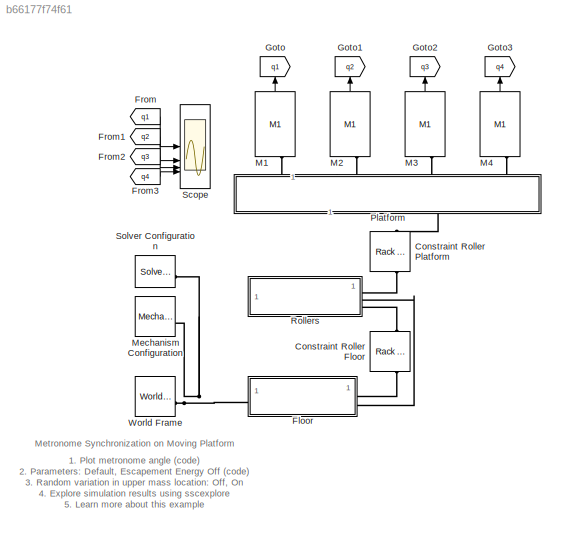
MODEL slx_b66177f74f61
KIND model
CONFIG AbsTol = 1e-3
CONFIG EnableMultiTasking = on
CONFIG MaxStep = 1e-2
CONFIG PreLoadFcn = sm_metronome_sync_param
CONFIG SolverName = ode23t
CONFIG StopTime = 300
BLOCK [Reference] Constraint Roller Floor  REF=sm_lib/Gears and
Couplings/Gears/Rack and Pinion
Constraint
  NameLocation = left
  SourceBlock = sm_lib/Gears and\nCouplings/Gears/Rack and Pinion\nConstraint
  SourceType = Rack and Pinion\nConstraint
BLOCK [Reference] Constraint Roller Platform  REF=sm_lib/Gears and
Couplings/Gears/Rack and Pinion
Constraint
  NameLocation = left
  SourceBlock = sm_lib/Gears and\nCouplings/Gears/Rack and Pinion\nConstraint
  SourceType = Rack and Pinion\nConstraint
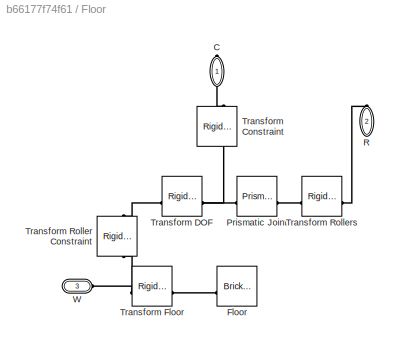
BLOCK [SubSystem] Floor
BLOCK [PMIOPort] Floor/C
  NameLocation = right
  Side = Right
BLOCK [Reference] Floor/Floor  REF=sm_lib/Body Elements/Brick Solid
  SourceBlock = sm_lib/Body Elements/Brick Solid
  SourceType = Brick Solid
BLOCK [Reference] Floor/Prismatic Joint  REF=sm_lib/Joints/Prismatic
Joint
  SourceBlock = sm_lib/Joints/Prismatic\nJoint
  SourceType = Prismatic\nJoint
BLOCK [PMIOPort] Floor/R
  NameLocation = right
  Port = 2
  Side = Right
BLOCK [Reference] Floor/Transform Constraint  REF=sm_lib/Frames and
Transforms/Rigid
Transform
  NameLocation = right
  SourceBlock = sm_lib/Frames and\nTransforms/Rigid\nTransform
  SourceType = Rigid\nTransform
BLOCK [Reference] Floor/Transform DOF  REF=sm_lib/Frames and
Transforms/Rigid
Transform
  SourceBlock = sm_lib/Frames and\nTransforms/Rigid\nTransform
  SourceType = Rigid\nTransform
BLOCK [Reference] Floor/Transform Floor  REF=sm_lib/Frames and
Transforms/Rigid
Transform
  SourceBlock = sm_lib/Frames and\nTransforms/Rigid\nTransform
  SourceType = Rigid\nTransform
BLOCK [Reference] Floor/Transform Roller Constraint  REF=sm_lib/Frames and
Transforms/Rigid
Transform
  NameLocation = left
  SourceBlock = sm_lib/Frames and\nTransforms/Rigid\nTransform
  SourceType = Rigid\nTransform
BLOCK [Reference] Floor/Transform Rollers  REF=sm_lib/Frames and
Transforms/Rigid
Transform
  SourceBlock = sm_lib/Frames and\nTransforms/Rigid\nTransform
  SourceType = Rigid\nTransform
BLOCK [PMIOPort] Floor/W
  Port = 3
  Side = Left
BLOCK [From] From
  GotoTag = q1
BLOCK [From] From1
  GotoTag = q2
BLOCK [From] From2
  GotoTag = q3
BLOCK [From] From3
  GotoTag = q4
BLOCK [Goto] Goto
  GotoTag = q1
  NameLocation = right
BLOCK [Goto] Goto1
  GotoTag = q2
  NameLocation = right
BLOCK [Goto] Goto2
  GotoTag = q3
  NameLocation = right
BLOCK [Goto] Goto3
  GotoTag = q4
  NameLocation = right
BLOCK [Reference] M1  REF=sm_metronome_lib/M1  (lib defined in slx_9433ba20aabc)
  NameLocation = right
  SourceBlock = sm_metronome_lib/M1
  SourceType = Metronome
BLOCK [Reference] M2  REF=sm_metronome_lib/M1  (lib defined in slx_9433ba20aabc)
  NameLocation = right
  SourceBlock = sm_metronome_lib/M1
  SourceType = Metronome
BLOCK [Reference] M3  REF=sm_metronome_lib/M1  (lib defined in slx_9433ba20aabc)
  NameLocation = right
  SourceBlock = sm_metronome_lib/M1
  SourceType = Metronome
BLOCK [Reference] M4  REF=sm_metronome_lib/M1  (lib defined in slx_9433ba20aabc)
  NameLocation = right
  SourceBlock = sm_metronome_lib/M1
  SourceType = Metronome
BLOCK [Reference] Mechanism Configuration  REF=sm_lib/Utilities/Mechanism
Configuration
  SourceBlock = sm_lib/Utilities/Mechanism\nConfiguration
  SourceType = Mechanism\nConfiguration
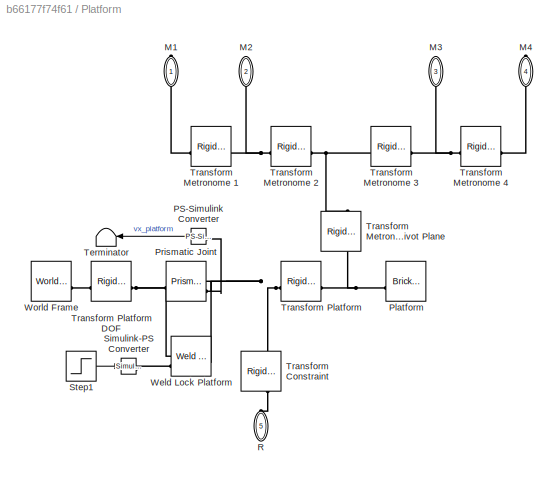
BLOCK [SubSystem] Platform
  NameLocation = right
BLOCK [PMIOPort] Platform/M1
  NameLocation = right
  Side = Right
BLOCK [PMIOPort] Platform/M2
  NameLocation = right
  Port = 2
  Side = Right
BLOCK [PMIOPort] Platform/M3
  NameLocation = left
  Port = 3
  Side = Right
BLOCK [PMIOPort] Platform/M4
  NameLocation = left
  Port = 4
  Side = Right
BLOCK [Reference] Platform/PS-Simulink Converter  REF=nesl_utility/PS-Simulink
Converter
  NameLocation = top
  SourceBlock = nesl_utility/PS-Simulink\nConverter
  SourceType = PS-Simulink\nConverter
BLOCK [Reference] Platform/Platform  REF=sm_lib/Body Elements/Brick Solid
  NameLocation = right
  SourceBlock = sm_lib/Body Elements/Brick Solid
  SourceType = Brick Solid
BLOCK [Reference] Platform/Prismatic Joint  REF=sm_lib/Joints/Prismatic
Joint
  SourceBlock = sm_lib/Joints/Prismatic\nJoint
  SourceType = Prismatic\nJoint
BLOCK [PMIOPort] Platform/R
  NameLocation = left
  Port = 5
  Side = Left
BLOCK [Reference] Platform/Simulink-PS Converter  REF=nesl_utility/Simulink-PS
Converter
  NameLocation = top
  SourceBlock = nesl_utility/Simulink-PS\nConverter
  SourceType = Simulink-PS\nConverter
BLOCK [Step] Platform/Step1
  FinalValue = -1
  NameLocation = top
  SampleTime = 0
  Time = t_unlock
BLOCK [Terminator] Platform/Terminator
  NameLocation = top
BLOCK [Reference] Platform/Transform Constraint  REF=sm_lib/Frames and
Transforms/Rigid
Transform
  NameLocation = right
  SourceBlock = sm_lib/Frames and\nTransforms/Rigid\nTransform
  SourceType = Rigid\nTransform
BLOCK [Reference] Platform/Transform Metronome 1  REF=sm_lib/Frames and
Transforms/Rigid
Transform
  SourceBlock = sm_lib/Frames and\nTransforms/Rigid\nTransform
  SourceType = Rigid\nTransform
BLOCK [Reference] Platform/Transform Metronome 2  REF=sm_lib/Frames and
Transforms/Rigid
Transform
  SourceBlock = sm_lib/Frames and\nTransforms/Rigid\nTransform
  SourceType = Rigid\nTransform
BLOCK [Reference] Platform/Transform Metronome 3  REF=sm_lib/Frames and
Transforms/Rigid
Transform
  SourceBlock = sm_lib/Frames and\nTransforms/Rigid\nTransform
  SourceType = Rigid\nTransform
BLOCK [Reference] Platform/Transform Metronome 4  REF=sm_lib/Frames and
Transforms/Rigid
Transform
  SourceBlock = sm_lib/Frames and\nTransforms/Rigid\nTransform
  SourceType = Rigid\nTransform
BLOCK [Reference] Platform/Transform Metronome Pivot Plane  REF=sm_lib/Frames and
Transforms/Rigid
Transform
  NameLocation = right
  SourceBlock = sm_lib/Frames and\nTransforms/Rigid\nTransform
  SourceType = Rigid\nTransform
BLOCK [Reference] Platform/Transform Platform  REF=sm_lib/Frames and
Transforms/Rigid
Transform
  SourceBlock = sm_lib/Frames and\nTransforms/Rigid\nTransform
  SourceType = Rigid\nTransform
BLOCK [Reference] Platform/Transform Platform DOF  REF=sm_lib/Frames and
Transforms/Rigid
Transform
  SourceBlock = sm_lib/Frames and\nTransforms/Rigid\nTransform
  SourceType = Rigid\nTransform
BLOCK [Reference] Platform/Weld Lock Platform  REF=sm_lib/Joints/Weld Joint
  SourceBlock = sm_lib/Joints/Weld Joint
  SourceType = Weld Joint
BLOCK [Reference] Platform/World Frame  REF=sm_lib/Frames and
Transforms/World Frame
  SourceBlock = sm_lib/Frames and\nTransforms/World Frame
  SourceType = World Frame
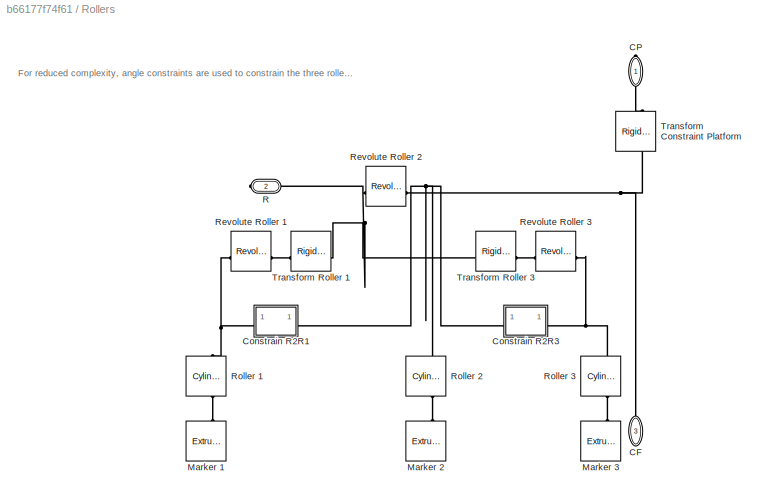
BLOCK [SubSystem] Rollers
BLOCK [PMIOPort] Rollers/CF
  NameLocation = right
  Port = 3
  Side = Right
BLOCK [PMIOPort] Rollers/CP
  NameLocation = right
  Side = Right
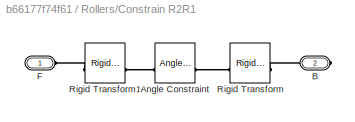
BLOCK [SubSystem] Rollers/Constrain R2R1
BLOCK [Reference] Rollers/Constrain R2R1/Angle Constraint  REF=sm_lib/Constraints/Angle
Constraint
  SourceBlock = sm_lib/Constraints/Angle\nConstraint
  SourceType = Angle\nConstraint
BLOCK [PMIOPort] Rollers/Constrain R2R1/B
  Port = 2
  Side = Right
BLOCK [PMIOPort] Rollers/Constrain R2R1/F
  Side = Left
BLOCK [Reference] Rollers/Constrain R2R1/Rigid Transform  REF=sm_lib/Frames and
Transforms/Rigid
Transform
  SourceBlock = sm_lib/Frames and\nTransforms/Rigid\nTransform
  SourceType = Rigid\nTransform
BLOCK [Reference] Rollers/Constrain R2R1/Rigid Transform1  REF=sm_lib/Frames and
Transforms/Rigid
Transform
  SourceBlock = sm_lib/Frames and\nTransforms/Rigid\nTransform
  SourceType = Rigid\nTransform
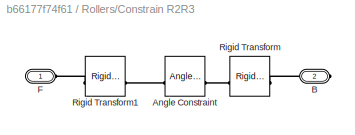
BLOCK [SubSystem] Rollers/Constrain R2R3
BLOCK [Reference] Rollers/Constrain R2R3/Angle Constraint  REF=sm_lib/Constraints/Angle
Constraint
  SourceBlock = sm_lib/Constraints/Angle\nConstraint
  SourceType = Angle\nConstraint
BLOCK [PMIOPort] Rollers/Constrain R2R3/B
  Port = 2
  Side = Right
BLOCK [PMIOPort] Rollers/Constrain R2R3/F
  Side = Left
BLOCK [Reference] Rollers/Constrain R2R3/Rigid Transform  REF=sm_lib/Frames and
Transforms/Rigid
Transform
  SourceBlock = sm_lib/Frames and\nTransforms/Rigid\nTransform
  SourceType = Rigid\nTransform
BLOCK [Reference] Rollers/Constrain R2R3/Rigid Transform1  REF=sm_lib/Frames and
Transforms/Rigid
Transform
  SourceBlock = sm_lib/Frames and\nTransforms/Rigid\nTransform
  SourceType = Rigid\nTransform
BLOCK [Reference] Rollers/Marker 1  REF=sm_lib/Body Elements/Extruded Solid
  NameLocation = right
  SourceBlock = sm_lib/Body Elements/Extruded Solid
  SourceType = Extruded Solid
BLOCK [Reference] Rollers/Marker 2  REF=sm_lib/Body Elements/Extruded Solid
  NameLocation = left
  SourceBlock = sm_lib/Body Elements/Extruded Solid
  SourceType = Extruded Solid
BLOCK [Reference] Rollers/Marker 3  REF=sm_lib/Body Elements/Extruded Solid
  NameLocation = left
  SourceBlock = sm_lib/Body Elements/Extruded Solid
  SourceType = Extruded Solid
BLOCK [PMIOPort] Rollers/R
  Port = 2
  Side = Right
BLOCK [Reference] Rollers/Revolute Roller 1  REF=sm_lib/Joints/Revolute Joint
  SourceBlock = sm_lib/Joints/Revolute Joint
  SourceType = Revolute Joint
BLOCK [Reference] Rollers/Revolute Roller 2  REF=sm_lib/Joints/Revolute Joint
  SourceBlock = sm_lib/Joints/Revolute Joint
  SourceType = Revolute Joint
BLOCK [Reference] Rollers/Revolute Roller 3  REF=sm_lib/Joints/Revolute Joint
  SourceBlock = sm_lib/Joints/Revolute Joint
  SourceType = Revolute Joint
BLOCK [Reference] Rollers/Roller 1  REF=sm_lib/Body Elements/Cylindrical Solid
  NameLocation = right
  SourceBlock = sm_lib/Body Elements/Cylindrical Solid
  SourceType = Cylindrical Solid
BLOCK [Reference] Rollers/Roller 2  REF=sm_lib/Body Elements/Cylindrical Solid
  NameLocation = left
  SourceBlock = sm_lib/Body Elements/Cylindrical Solid
  SourceType = Cylindrical Solid
BLOCK [Reference] Rollers/Roller 3  REF=sm_lib/Body Elements/Cylindrical Solid
  NameLocation = left
  SourceBlock = sm_lib/Body Elements/Cylindrical Solid
  SourceType = Cylindrical Solid
BLOCK [Reference] Rollers/Transform Constraint Platform  REF=sm_lib/Frames and
Transforms/Rigid
Transform
  NameLocation = left
  SourceBlock = sm_lib/Frames and\nTransforms/Rigid\nTransform
  SourceType = Rigid\nTransform
BLOCK [Reference] Rollers/Transform Roller 1  REF=sm_lib/Frames and
Transforms/Rigid
Transform
  SourceBlock = sm_lib/Frames and\nTransforms/Rigid\nTransform
  SourceType = Rigid\nTransform
BLOCK [Reference] Rollers/Transform Roller 3  REF=sm_lib/Frames and
Transforms/Rigid
Transform
  SourceBlock = sm_lib/Frames and\nTransforms/Rigid\nTransform
  SourceType = Rigid\nTransform
BLOCK [Scope] Scope
  ActiveDisplayYMaximum = 0.65416
  ActiveDisplayYMinimum = -0.65144
  DataLogging = on
  DataLoggingSaveFormat = Structure With Time
  DataLoggingVariableName = MetronomeAngles
  Floating = off
  GraphicalSettings = {"GraphicalSettings":{"LegacySettings":true,"Style":{"AxesScalingProperties":{"ScaleAxesLimitsAtStop":false},"Style":{"AxesColor":"[0 0 0]","BackgroundColor":"[0 0 0]","ChannelNames":[""],"ColorOrder":"[1 0.909803921568627 0.392156862745098;0.149019607843137 0.549019607843137 0.866666666666667;0.96078431372549 0.466666666666667 0.16078431372549;0.286274509803922 0.858823529411765 0.250980392156863...<+1113ch>
  MultipleDisplayCache = [{"MaxYLimMag":0.65416,"MaxYLimReal":0.65416,"MinYLimMag":0,"MinYLimReal":-0.65144,"PlotAsMagnitudePhase":false,"ShowGrid":true,"ShowLegend":false,"Title":"%<SignalLabel>","YLabel":""}]
  NumInputPorts = 4
  ShowTimeAxisLabel = on
  TimeSpan = 5.52
  TimeSpanOverrunAction = Scroll
  TimeUnits = Seconds
  WasSavedAsWebScope = on
  WindowPosition = [614 223 632 555]
BLOCK [Reference] Solver Configuration  REF=nesl_utility/Solver
Configuration
  SourceBlock = nesl_utility/Solver\nConfiguration
  SourceType = Solver\nConfiguration
BLOCK [Reference] World Frame  REF=sm_lib/Frames and
Transforms/World Frame
  SourceBlock = sm_lib/Frames and\nTransforms/World Frame
  SourceType = World Frame
ANNOTATION (root): 1. Plot metronome angle ( code ) 2. Parameters: Default , Escapement Energy Off ( code ) 3. Random variation in upper mass location: Off , On 4. Explore simulation results using sscexplore 5. Learn more about this example
ANNOTATION (root): Metronome Synchronization on Moving Platform
ANNOTATION Rollers: For reduced complexity, angle constraints are used to constrain the three rollers to roll together instead of using Rack and Pinion Constraints between (roller and platform) and (roller and floor).
LINE From1:1 -> Scope:2
LINE From2:1 -> Scope:3
LINE From3:1 -> Scope:4
LINE From:1 -> Scope:1
LINE M1:1 -> Goto:1
LINE M2:1 -> Goto1:1
LINE M3:1 -> Goto2:1
LINE M4:1 -> Goto3:1
LINE Platform/PS-Simulink Converter:1 -> Platform/Terminator:1
LINE Platform/Step1:1 -> Platform/Simulink-PS Converter:1
PLINE Constraint Roller Floor:LConn1 -- Rollers:RConn3
PLINE Constraint Roller Floor:RConn1 -- Floor:RConn1
PLINE Constraint Roller Platform:LConn1 -- Rollers:RConn1
PLINE Constraint Roller Platform:RConn1 -- Platform:LConn1
PLINE Floor/C:RConn1 -- Floor/Transform Constraint:RConn1
PLINE Floor/Floor:RConn1 -- Floor/Transform Floor:RConn1
PNET net1: Floor/Prismatic Joint:LConn1 -- Floor/Transform Constraint:LConn1 -- Floor/Transform DOF:RConn1
PLINE Floor/Prismatic Joint:RConn1 -- Floor/Transform Rollers:LConn1
PLINE Floor/R:RConn1 -- Floor/Transform Rollers:RConn1
PLINE Floor/Transform DOF:LConn1 -- Floor/Transform Roller Constraint:RConn1
PNET net2: Floor/Transform Floor:LConn1 -- Floor/Transform Roller Constraint:LConn1 -- Floor/W:RConn1
PNET net3: Floor:LConn1 -- Mechanism Configuration:RConn1 -- Solver Configuration:RConn1 -- World Frame:RConn1
PLINE Floor:RConn2 -- Rollers:RConn2
PLINE M1:LConn1 -- Platform:RConn1
PLINE M2:LConn1 -- Platform:RConn2
PLINE M3:LConn1 -- Platform:RConn3
PLINE M4:LConn1 -- Platform:RConn4
PLINE Platform/M1:RConn1 -- Platform/Transform Metronome 1:RConn1
PNET net4: Platform/M2:RConn1 -- Platform/Transform Metronome 1:LConn1 -- Platform/Transform Metronome 2:RConn1
PNET net5: Platform/M3:RConn1 -- Platform/Transform Metronome 3:LConn1 -- Platform/Transform Metronome 4:RConn1
PLINE Platform/M4:RConn1 -- Platform/Transform Metronome 4:LConn1
PLINE Platform/PS-Simulink Converter:LConn1 -- Platform/Prismatic Joint:RConn2
PNET net6: Platform/Platform:RConn1 -- Platform/Transform Metronome Pivot Plane:LConn1 -- Platform/Transform Platform:LConn1
PNET net7: Platform/Prismatic Joint:LConn1 -- Platform/Transform Platform DOF:RConn1 -- Platform/Weld Lock Platform:LConn1
PNET net8: Platform/Prismatic Joint:RConn1 -- Platform/Transform Constraint:LConn1 -- Platform/Transform Platform:RConn1 -- Platform/Weld Lock Platform:RConn1
PLINE Platform/R:RConn1 -- Platform/Transform Constraint:RConn1
PLINE Platform/Simulink-PS Converter:RConn1 -- Platform/Weld Lock Platform:LConn2
PNET net9: Platform/Transform Metronome 2:LConn1 -- Platform/Transform Metronome 3:RConn1 -- Platform/Transform Metronome Pivot Plane:RConn1
PLINE Platform/Transform Platform DOF:LConn1 -- Platform/World Frame:RConn1
PNET net10: Rollers/CF:RConn1 -- Rollers/Constrain R2R1:RConn1 -- Rollers/Constrain R2R3:RConn1 -- Rollers/Revolute Roller 2:RConn1 -- Rollers/Roller 2:RConn1 -- Rollers/Transform Constraint Platform:LConn1
PLINE Rollers/CP:RConn1 -- Rollers/Transform Constraint Platform:RConn1
PLINE Rollers/Constrain R2R1/Angle Constraint:LConn1 -- Rollers/Constrain R2R1/Rigid Transform:RConn1
PLINE Rollers/Constrain R2R1/Angle Constraint:RConn1 -- Rollers/Constrain R2R1/Rigid Transform1:RConn1
PLINE Rollers/Constrain R2R1/B:RConn1 -- Rollers/Constrain R2R1/Rigid Transform:LConn1
PLINE Rollers/Constrain R2R1/F:RConn1 -- Rollers/Constrain R2R1/Rigid Transform1:LConn1
PNET net11: Rollers/Constrain R2R1:LConn1 -- Rollers/Revolute Roller 1:RConn1 -- Rollers/Roller 1:RConn1
PLINE Rollers/Constrain R2R3/Angle Constraint:LConn1 -- Rollers/Constrain R2R3/Rigid Transform:RConn1
PLINE Rollers/Constrain R2R3/Angle Constraint:RConn1 -- Rollers/Constrain R2R3/Rigid Transform1:RConn1
PLINE Rollers/Constrain R2R3/B:RConn1 -- Rollers/Constrain R2R3/Rigid Transform:LConn1
PLINE Rollers/Constrain R2R3/F:RConn1 -- Rollers/Constrain R2R3/Rigid Transform1:LConn1
PNET net12: Rollers/Constrain R2R3:LConn1 -- Rollers/Revolute Roller 3:RConn1 -- Rollers/Roller 3:RConn1
PLINE Rollers/Marker 1:RConn1 -- Rollers/Roller 1:LConn1
PLINE Rollers/Marker 2:RConn1 -- Rollers/Roller 2:LConn1
PLINE Rollers/Marker 3:RConn1 -- Rollers/Roller 3:LConn1
PNET net13: Rollers/R:RConn1 -- Rollers/Revolute Roller 2:LConn1 -- Rollers/Transform Roller 1:RConn1 -- Rollers/Transform Roller 3:LConn1
PLINE Rollers/Revolute Roller 1:LConn1 -- Rollers/Transform Roller 1:LConn1
PLINE Rollers/Revolute Roller 3:LConn1 -- Rollers/Transform Roller 3:RConn1
note: PNET lines group multi-terminal physical nets as a canonical sorted terminal list (undirected conserving connections); 2-terminal nets keep the pairwise PLINE form
